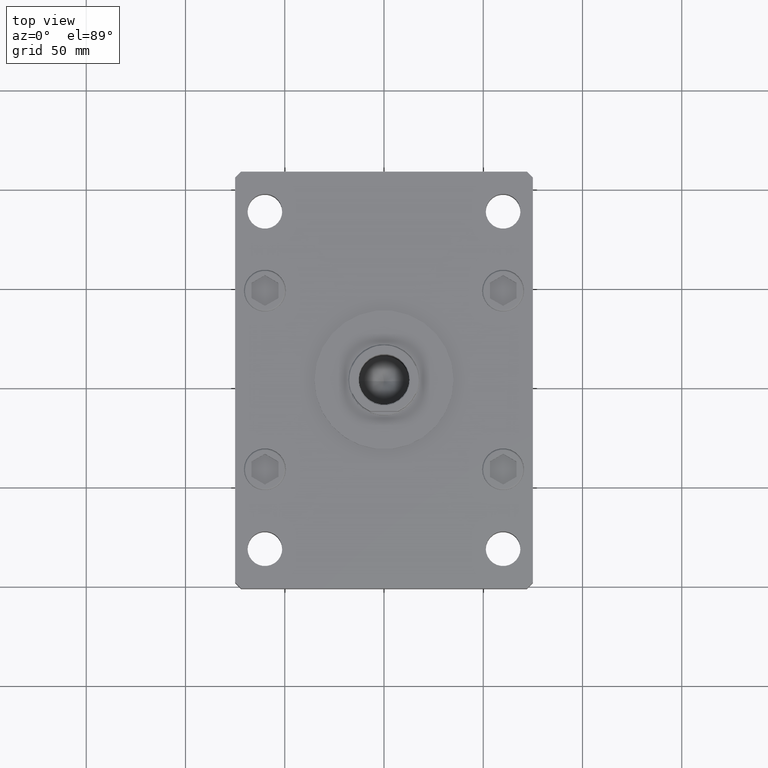
[diagram: clean part render]
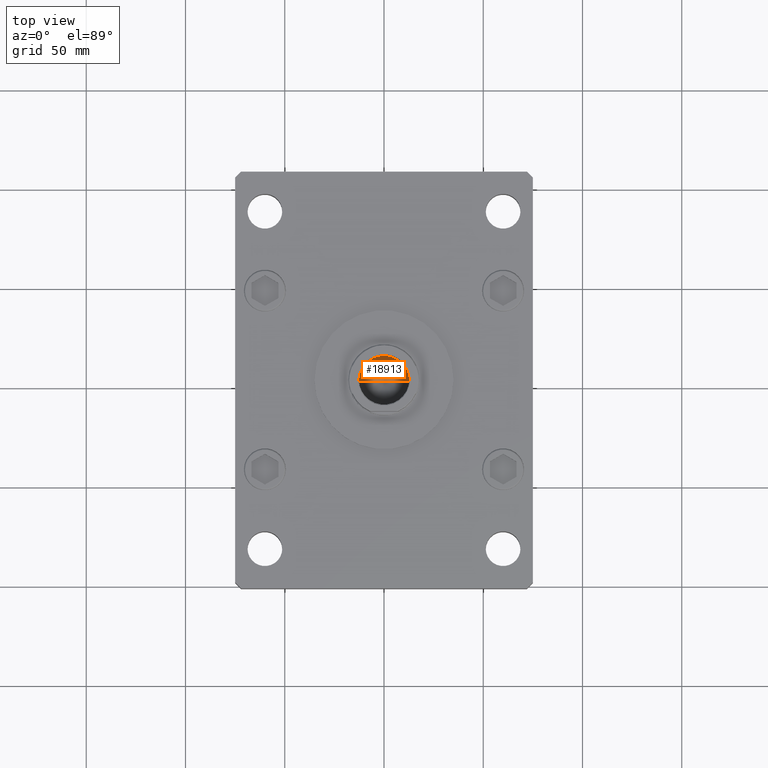
[diagram: same view with one face highlighted and labeled with its STEP entity id]
A machine part, top view. The second image highlights one B-rep face of the part: STEP entity #18913.
In plain terms, the highlighted conical surface has half-angle 59 deg.
Its self-contained STEP definition (entity closure, byte-faithful):
#503 = DIRECTION ( 'NONE',  ( 1.000000000000000000, 0.000000000000000000, 0.000000000000000000 ) ) ;
#3247 = FACE_OUTER_BOUND ( 'NONE', #36681, .T. ) ;
#3269 = LINE ( 'NONE', #10403, #47177 ) ;
#3846 = CARTESIAN_POINT ( 'NONE',  ( 12.74999999999999112, 0.000000000000000000, 184.5000000000000000 ) ) ;
#4652 = LINE ( 'NONE', #3846, #51182 ) ;
#6112 = EDGE_CURVE ( 'NONE', #11895, #12684, #4652, .T. ) ;
#8087 = AXIS2_PLACEMENT_3D ( 'NONE', #48754, #28157, #503 ) ;
#10403 = CARTESIAN_POINT ( 'NONE',  ( -12.74999999999999112, 1.561424668912874125E-15, 184.5000000000000000 ) ) ;
#10733 = AXIS2_PLACEMENT_3D ( 'NONE', #11125, #19521, #15460 ) ;
#11125 = CARTESIAN_POINT ( 'NONE',  ( 0.000000000000000000, 0.000000000000000000, 184.5000000000000000 ) ) ;
#11893 = CARTESIAN_POINT ( 'NONE',  ( -12.74999999999999112, 1.561424668912874125E-15, 184.5000000000000000 ) ) ;
#11895 = VERTEX_POINT ( 'NONE', #30486 ) ;
#12684 = VERTEX_POINT ( 'NONE', #21571 ) ;
#15460 = DIRECTION ( 'NONE',  ( 1.000000000000000000, 0.000000000000000000, 0.000000000000000000 ) ) ;
#18277 = DIRECTION ( 'NONE',  ( -0.8571673007021125557, 1.049727191138618942E-16, 0.5150380749100536004 ) ) ;
#18913 = ADVANCED_FACE ( 'NONE', ( #3247 ), #48841, .F. ) ;
#19521 = DIRECTION ( 'NONE',  ( -0.000000000000000000, -0.000000000000000000, 1.000000000000000000 ) ) ;
#21017 = ORIENTED_EDGE ( 'NONE', *, *, #22762, .F. ) ;
#21181 = DIRECTION ( 'NONE',  ( 0.8571673007021125557, 0.000000000000000000, 0.5150380749100536004 ) ) ;
#21571 = CARTESIAN_POINT ( 'NONE',  ( 12.74999999999999112, 0.000000000000000000, 184.5000000000000000 ) ) ;
#22762 = EDGE_CURVE ( 'NONE', #11895, #27498, #3269, .T. ) ;
#24481 = ORIENTED_EDGE ( 'NONE', *, *, #41392, .T. ) ;
#27498 = VERTEX_POINT ( 'NONE', #11893 ) ;
#28157 = DIRECTION ( 'NONE',  ( -0.000000000000000000, -0.000000000000000000, 1.000000000000000000 ) ) ;
#30486 = CARTESIAN_POINT ( 'NONE',  ( -1.307202896762960287E-14, 0.000000000000000000, 176.8390271073986355 ) ) ;
#34818 = ORIENTED_EDGE ( 'NONE', *, *, #6112, .T. ) ;
#36681 = EDGE_LOOP ( 'NONE', ( #21017, #34818, #24481 ) ) ;
#41392 = EDGE_CURVE ( 'NONE', #12684, #27498, #44397, .T. ) ;
#44397 = CIRCLE ( 'NONE', #8087, 12.74999999999999112 ) ;
#47177 = VECTOR ( 'NONE', #18277, 1000.000000000000114 ) ;
#48754 = CARTESIAN_POINT ( 'NONE',  ( 0.000000000000000000, 0.000000000000000000, 184.5000000000000000 ) ) ;
#48841 = CONICAL_SURFACE ( 'NONE', #10733, 12.74999999999999112, 1.029744258676655200 ) ;
#51182 = VECTOR ( 'NONE', #21181, 1000.000000000000114 ) ;